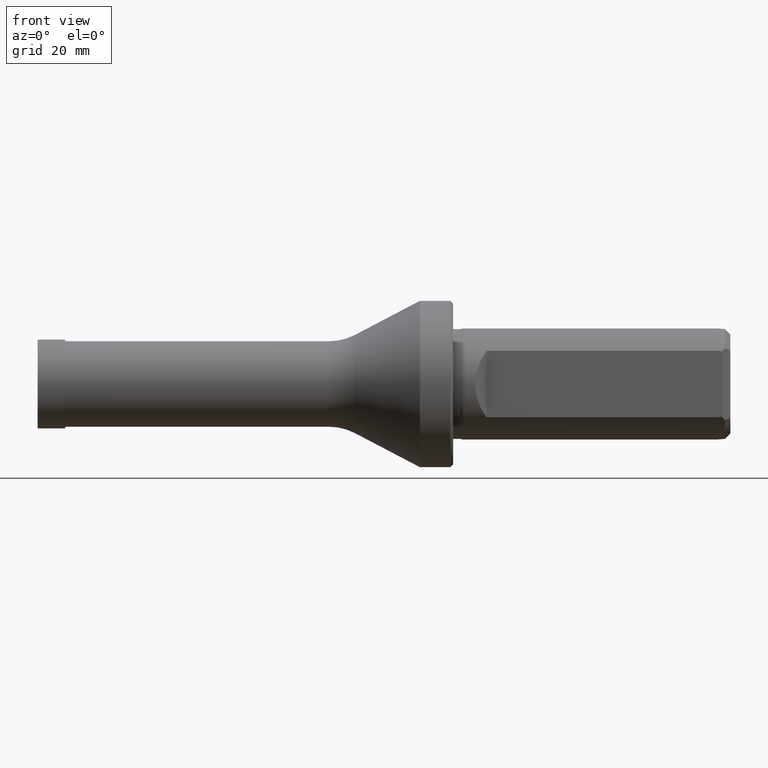
[diagram: clean part render]
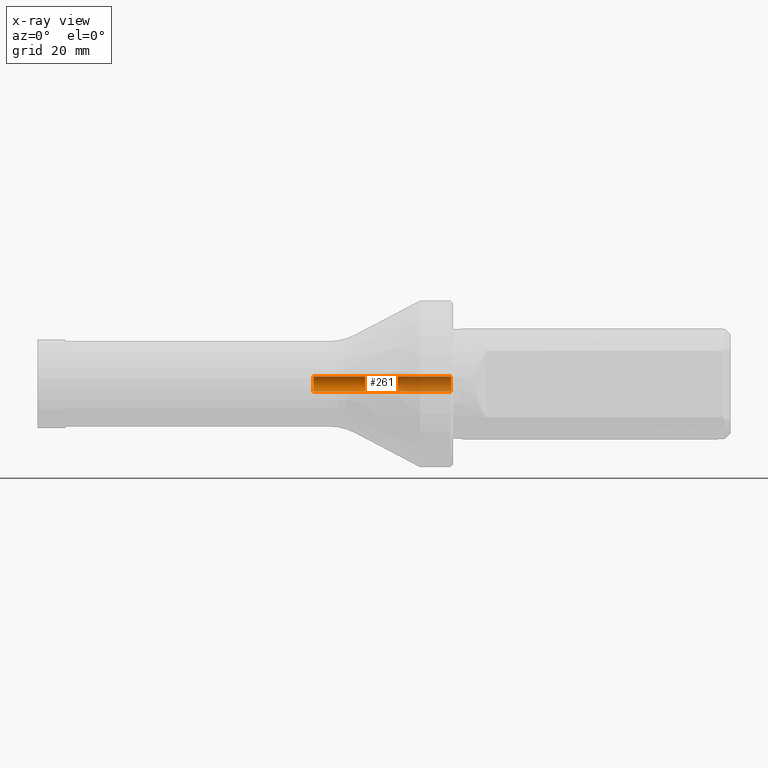
[diagram: x-ray — body ghosted, one internal face saturated and labeled with its STEP entity id]
A machine part, front view, then the same camera in x-ray: the body is ghosted and one INTERNAL B-rep face — a face not visible from any outside direction — is saturated and labeled: STEP entity #261.
In plain terms, the highlighted cylindrical surface (edge-blend (fillet) strip) has radius 1.35 mm, axis along (-1, -0, -0).
Its self-contained STEP definition (entity closure, byte-faithful):
#11 = CARTESIAN_POINT ( 'NONE',  ( 74.05944059763209000, 1.653273178848927600E-016, -1.350000000000000100 ) ) ;
#23 = CARTESIAN_POINT ( 'NONE',  ( 0.0000000000000000000, 0.0000000000000000000, 0.0000000000000000000 ) ) ;
#40 = DIRECTION ( 'NONE',  ( -1.000000000000000000, -0.0000000000000000000, -0.0000000000000000000 ) ) ;
#84 = LINE ( 'NONE', #969, #567 ) ;
#112 = DIRECTION ( 'NONE',  ( 0.0000000000000000000, 0.0000000000000000000, 1.000000000000000000 ) ) ;
#139 = ORIENTED_EDGE ( 'NONE', *, *, #200, .T. ) ;
#200 = EDGE_CURVE ( 'NONE', #618, #254, #782, .T. ) ;
#208 = VERTEX_POINT ( 'NONE', #11 ) ;
#211 = DIRECTION ( 'NONE',  ( -1.000000000000000000, -0.0000000000000000000, -0.0000000000000000000 ) ) ;
#254 = VERTEX_POINT ( 'NONE', #489 ) ;
#261 = ADVANCED_FACE ( 'NONE', ( #720 ), #605, .F. ) ;
#310 = CARTESIAN_POINT ( 'NONE',  ( 49.26116183568721100, 1.653273178848930800E-016, 1.350000000000003400 ) ) ;
#391 = AXIS2_PLACEMENT_3D ( 'NONE', #957, #211, #777 ) ;
#489 = CARTESIAN_POINT ( 'NONE',  ( 49.26116183568721100, 0.0000000000000000000, -1.350000000000003400 ) ) ;
#517 = EDGE_CURVE ( 'NONE', #995, #208, #738, .T. ) ;
#559 = CARTESIAN_POINT ( 'NONE',  ( 74.05944059763209000, 0.0000000000000000000, 0.0000000000000000000 ) ) ;
#567 = VECTOR ( 'NONE', #973, 1000.000000000000000 ) ;
#605 = CYLINDRICAL_SURFACE ( 'NONE', #908, 1.350000000000001600 ) ;
#609 = CARTESIAN_POINT ( 'NONE',  ( 0.0000000000000000000, 0.0000000000000000000, 1.350000000000001600 ) ) ;
#616 = CARTESIAN_POINT ( 'NONE',  ( 74.05944059763209000, 0.0000000000000000000, 1.350000000000000100 ) ) ;
#618 = VERTEX_POINT ( 'NONE', #310 ) ;
#649 = EDGE_LOOP ( 'NONE', ( #807, #731, #1156, #139 ) ) ;
#665 = VECTOR ( 'NONE', #40, 1000.000000000000000 ) ;
#683 = DIRECTION ( 'NONE',  ( 0.0000000000000000000, 0.0000000000000000000, 1.000000000000000000 ) ) ;
#686 = AXIS2_PLACEMENT_3D ( 'NONE', #559, #852, #112 ) ;
#720 = FACE_OUTER_BOUND ( 'NONE', #649, .T. ) ;
#731 = ORIENTED_EDGE ( 'NONE', *, *, #517, .F. ) ;
#738 = CIRCLE ( 'NONE', #686, 1.350000000000000100 ) ;
#777 = DIRECTION ( 'NONE',  ( 0.0000000000000000000, 0.0000000000000000000, 1.000000000000000000 ) ) ;
#782 = CIRCLE ( 'NONE', #391, 1.350000000000003200 ) ;
#807 = ORIENTED_EDGE ( 'NONE', *, *, #1131, .F. ) ;
#852 = DIRECTION ( 'NONE',  ( -1.000000000000000000, -0.0000000000000000000, -0.0000000000000000000 ) ) ;
#908 = AXIS2_PLACEMENT_3D ( 'NONE', #23, #1161, #683 ) ;
#957 = CARTESIAN_POINT ( 'NONE',  ( 49.26116183568721100, 0.0000000000000000000, 0.0000000000000000000 ) ) ;
#969 = CARTESIAN_POINT ( 'NONE',  ( 0.0000000000000000000, 1.653273178848928800E-016, -1.350000000000001600 ) ) ;
#973 = DIRECTION ( 'NONE',  ( -1.000000000000000000, -0.0000000000000000000, -0.0000000000000000000 ) ) ;
#995 = VERTEX_POINT ( 'NONE', #616 ) ;
#1030 = EDGE_CURVE ( 'NONE', #995, #618, #1093, .T. ) ;
#1093 = LINE ( 'NONE', #609, #665 ) ;
#1131 = EDGE_CURVE ( 'NONE', #208, #254, #84, .T. ) ;
#1156 = ORIENTED_EDGE ( 'NONE', *, *, #1030, .T. ) ;
#1161 = DIRECTION ( 'NONE',  ( -1.000000000000000000, -0.0000000000000000000, -0.0000000000000000000 ) ) ;